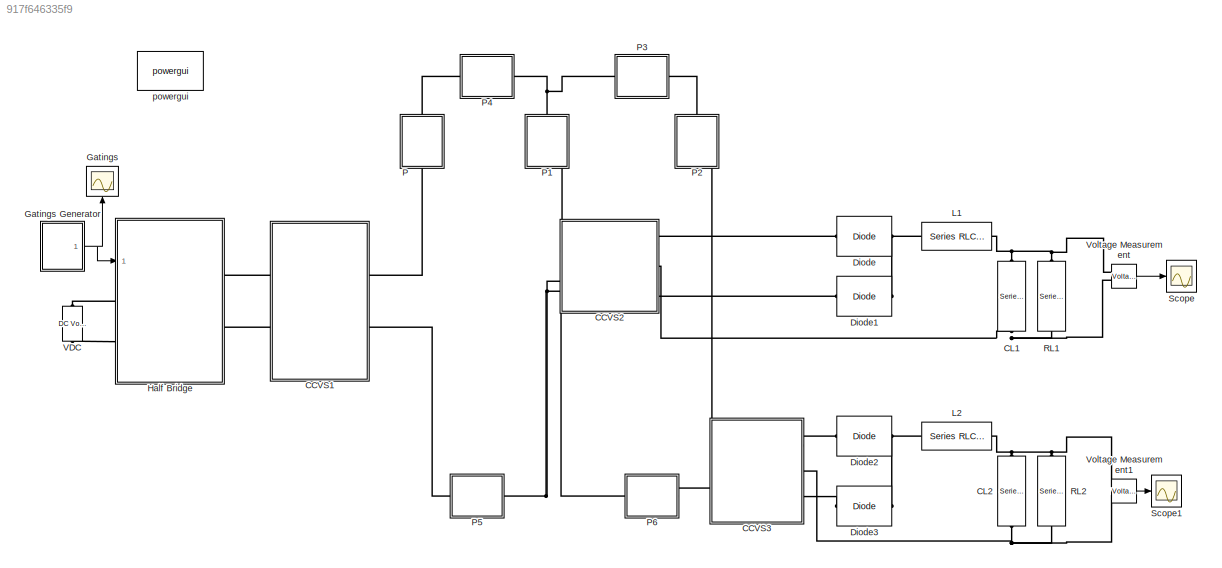
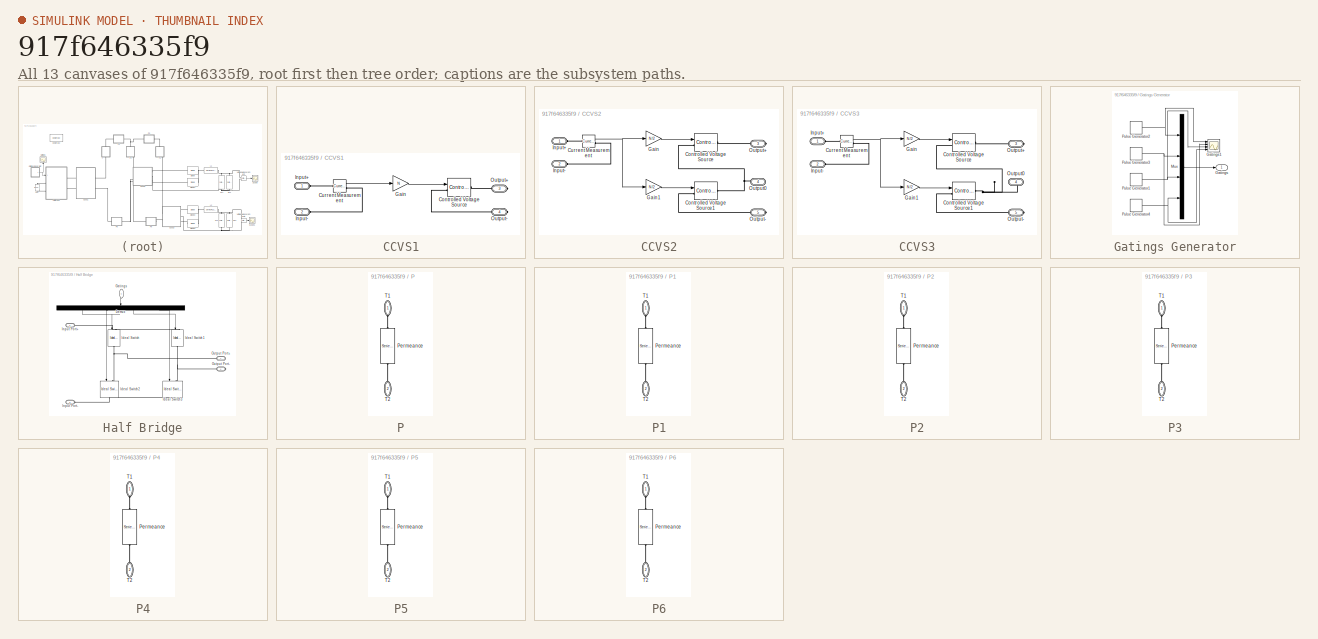
[diagram: thumbnail index - all 13 canvases of the model, root first then tree order]
MODEL slx_917f646335f9
KIND model
BLOCK [SubSystem] CCVS1
  FunctionWithSeparateData = off
  MaskHideContents = off
  MinAlgLoopOccurrences = off
  Opaque = off
  Ports = [0, 0, 0, 0, 0, 2, 2]
  PropExecContextOutsideSubsystem = off
  RTWSystemCode = Auto
  RequestExecContextInheritance = off
BLOCK [Reference] CCVS1/Controlled Voltage Source  REF=powerlib/Electrical
Sources/Controlled Voltage Source
  Amplitude = 0
  Frequency = 0
  Initialize = on
  Measurements = None
  Phase = 0
  Ports = [1, 0, 0, 0, 0, 1, 1]
  SourceBlock = powerlib/Electrical\nSources/Controlled Voltage Source
  SourceType = Controlled Voltage Source
  Source_Type = AC
BLOCK [Reference] CCVS1/Current Measurement  REF=powerlib/Measurements/Current Measurement
  OutputType = Complex
  PSBequivalent = 0
  PhasorSimulation = off
  Ports = [0, 1, 0, 0, 0, 1, 1]
  SourceBlock = powerlib/Measurements/Current Measurement
  SourceType = Current Measurement
BLOCK [Gain] CCVS1/Gain
  Gain = N
  OutDataTypeStr = Inherit: Inherit via internal rule
  ParamDataTypeStr = Inherit: Inherit via internal rule
  SaturateOnIntegerOverflow = off
BLOCK [PMIOPort] CCVS1/Input+
  Port = 1
  Side = Left
BLOCK [PMIOPort] CCVS1/Input-
  Port = 2
  Side = Left
BLOCK [PMIOPort] CCVS1/Output+
  Port = 3
  Side = Right
BLOCK [PMIOPort] CCVS1/Output-
  Port = 4
  Side = Right
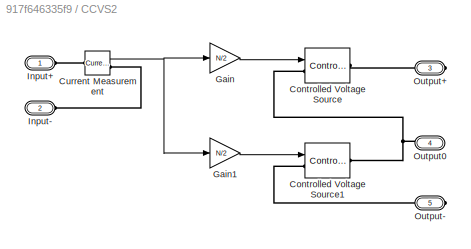
BLOCK [SubSystem] CCVS2
  FunctionWithSeparateData = off
  MaskHideContents = off
  MinAlgLoopOccurrences = off
  Opaque = off
  Ports = [0, 0, 0, 0, 0, 2, 3]
  PropExecContextOutsideSubsystem = off
  RTWSystemCode = Auto
  RequestExecContextInheritance = off
BLOCK [Reference] CCVS2/Controlled Voltage Source  REF=powerlib/Electrical
Sources/Controlled Voltage Source
  Amplitude = 0
  Frequency = 0
  Initialize = on
  Measurements = None
  Phase = 0
  Ports = [1, 0, 0, 0, 0, 1, 1]
  SourceBlock = powerlib/Electrical\nSources/Controlled Voltage Source
  SourceType = Controlled Voltage Source
  Source_Type = AC
BLOCK [Reference] CCVS2/Controlled Voltage Source1  REF=powerlib/Electrical
Sources/Controlled Voltage Source
  Amplitude = 0
  Frequency = 0
  Initialize = on
  Measurements = None
  Phase = 0
  Ports = [1, 0, 0, 0, 0, 1, 1]
  SourceBlock = powerlib/Electrical\nSources/Controlled Voltage Source
  SourceType = Controlled Voltage Source
  Source_Type = AC
BLOCK [Reference] CCVS2/Current Measurement  REF=powerlib/Measurements/Current Measurement
  OutputType = Complex
  PSBequivalent = 0
  PhasorSimulation = off
  Ports = [0, 1, 0, 0, 0, 1, 1]
  SourceBlock = powerlib/Measurements/Current Measurement
  SourceType = Current Measurement
BLOCK [Gain] CCVS2/Gain
  Gain = N/2
  OutDataTypeStr = Inherit: Inherit via internal rule
  ParamDataTypeStr = Inherit: Inherit via internal rule
  SaturateOnIntegerOverflow = off
BLOCK [Gain] CCVS2/Gain1
  Gain = N/2
  OutDataTypeStr = Inherit: Inherit via internal rule
  ParamDataTypeStr = Inherit: Inherit via internal rule
  SaturateOnIntegerOverflow = off
BLOCK [PMIOPort] CCVS2/Input+
  Port = 1
  Side = Left
BLOCK [PMIOPort] CCVS2/Input-
  Port = 2
  Side = Left
BLOCK [PMIOPort] CCVS2/Output+
  Port = 3
  Side = Right
BLOCK [PMIOPort] CCVS2/Output-
  Port = 5
  Side = Right
BLOCK [PMIOPort] CCVS2/Output0
  Port = 4
  Side = Right
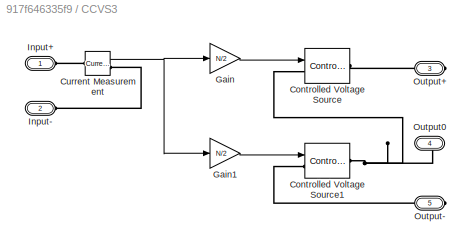
BLOCK [SubSystem] CCVS3
  FunctionWithSeparateData = off
  MaskHideContents = off
  MinAlgLoopOccurrences = off
  Opaque = off
  Ports = [0, 0, 0, 0, 0, 2, 3]
  PropExecContextOutsideSubsystem = off
  RTWSystemCode = Auto
  RequestExecContextInheritance = off
BLOCK [Reference] CCVS3/Controlled Voltage Source  REF=powerlib/Electrical
Sources/Controlled Voltage Source
  Amplitude = 0
  Frequency = 0
  Initialize = on
  Measurements = None
  Phase = 0
  Ports = [1, 0, 0, 0, 0, 1, 1]
  SourceBlock = powerlib/Electrical\nSources/Controlled Voltage Source
  SourceType = Controlled Voltage Source
  Source_Type = AC
BLOCK [Reference] CCVS3/Controlled Voltage Source1  REF=powerlib/Electrical
Sources/Controlled Voltage Source
  Amplitude = 0
  Frequency = 0
  Initialize = on
  Measurements = None
  Phase = 0
  Ports = [1, 0, 0, 0, 0, 1, 1]
  SourceBlock = powerlib/Electrical\nSources/Controlled Voltage Source
  SourceType = Controlled Voltage Source
  Source_Type = AC
BLOCK [Reference] CCVS3/Current Measurement  REF=powerlib/Measurements/Current Measurement
  OutputType = Complex
  PSBequivalent = 0
  PhasorSimulation = off
  Ports = [0, 1, 0, 0, 0, 1, 1]
  SourceBlock = powerlib/Measurements/Current Measurement
  SourceType = Current Measurement
BLOCK [Gain] CCVS3/Gain
  Gain = N/2
  OutDataTypeStr = Inherit: Inherit via internal rule
  ParamDataTypeStr = Inherit: Inherit via internal rule
  SaturateOnIntegerOverflow = off
BLOCK [Gain] CCVS3/Gain1
  Gain = N/2
  OutDataTypeStr = Inherit: Inherit via internal rule
  ParamDataTypeStr = Inherit: Inherit via internal rule
  SaturateOnIntegerOverflow = off
BLOCK [PMIOPort] CCVS3/Input+
  Port = 1
  Side = Left
BLOCK [PMIOPort] CCVS3/Input-
  Port = 2
  Side = Left
BLOCK [PMIOPort] CCVS3/Output+
  Port = 3
  Side = Right
BLOCK [PMIOPort] CCVS3/Output-
  Port = 5
  Side = Right
BLOCK [PMIOPort] CCVS3/Output0
  Port = 4
  Side = Right
BLOCK [Reference] CL1  REF=powerlib/Elements/Series RLC Branch
  BranchType = C
  Capacitance = 1
  Inductance = 1e-3
  InitialCurrent = 0
  InitialVoltage = 0
  LConnTagsString = __new0
  Measurements = None
  Ports = [0, 0, 0, 0, 0, 1, 1]
  RConnTagsString = __new0
  Resistance = 1
  SetiL0 = off
  Setx0 = off
  SourceBlock = powerlib/Elements/Series RLC Branch
  SourceType = Series RLC Branch
BLOCK [Reference] CL2  REF=powerlib/Elements/Series RLC Branch
  BranchType = C
  Capacitance = 1
  Inductance = 1e-3
  InitialCurrent = 0
  InitialVoltage = 0
  LConnTagsString = __new0
  Measurements = None
  Ports = [0, 0, 0, 0, 0, 1, 1]
  RConnTagsString = __new0
  Resistance = 1
  SetiL0 = off
  Setx0 = off
  SourceBlock = powerlib/Elements/Series RLC Branch
  SourceType = Series RLC Branch
BLOCK [Reference] Diode  REF=powerlib/Power
Electronics/Diode
  Cs = 250e-9
  IC = 0
  Lon = 0
  Measurements = off
  Ports = [0, 0, 0, 0, 0, 1, 1]
  Ron = 0.001
  Rs = 500
  SourceBlock = powerlib/Power\nElectronics/Diode
  SourceType = Diode
  UseSnubber = off
  Vf = 0.8
BLOCK [Reference] Diode1  REF=powerlib/Power
Electronics/Diode
  Cs = 250e-9
  IC = 0
  Lon = 0
  Measurements = off
  Ports = [0, 0, 0, 0, 0, 1, 1]
  Ron = 0.001
  Rs = 500
  SourceBlock = powerlib/Power\nElectronics/Diode
  SourceType = Diode
  UseSnubber = off
  Vf = 0.8
BLOCK [Reference] Diode2  REF=powerlib/Power
Electronics/Diode
  Cs = 250e-9
  IC = 0
  Lon = 0
  Measurements = off
  Ports = [0, 0, 0, 0, 0, 1, 1]
  Ron = 0.001
  Rs = 500
  SourceBlock = powerlib/Power\nElectronics/Diode
  SourceType = Diode
  UseSnubber = off
  Vf = 0.8
BLOCK [Reference] Diode3  REF=powerlib/Power
Electronics/Diode
  Cs = 250e-9
  IC = 0
  Lon = 0
  Measurements = off
  Ports = [0, 0, 0, 0, 0, 1, 1]
  Ron = 0.001
  Rs = 500
  SourceBlock = powerlib/Power\nElectronics/Diode
  SourceType = Diode
  UseSnubber = off
  Vf = 0.8
BLOCK [Scope] Gatings
  DataFormat = StructureWithTime
  Floating = off
  NumInputPorts = 1
  Ports = [1]
  SampleTime = 0
  SaveName = ScopeData2
  ShowLegends = off
  YMax = 608000
  YMin = 0
  ZoomMode = xonly
BLOCK [SubSystem] Gatings Generator
  FunctionWithSeparateData = off
  MaskHideContents = off
  MinAlgLoopOccurrences = off
  Opaque = off
  Ports = [0, 1]
  PropExecContextOutsideSubsystem = off
  RTWSystemCode = Auto
  RequestExecContextInheritance = off
BLOCK [Outport] Gatings Generator/Gatings
  IconDisplay = Port number
BLOCK [Scope] Gatings Generator/Gatings1
  DataFormat = StructureWithTime
  Floating = off
  LimitDataPoints = off
  NumInputPorts = 4
  Ports = [4]
  SampleTime = 0
  SaveName = ScopeData3
  ShowLegends = off
  YMax = 2~2~2~2
  YMin = -1~-1~-1~-1
  ZoomMode = xonly
BLOCK [Mux] Gatings Generator/Mux
  DisplayOption = bar
  Ports = [4, 1]
BLOCK [DiscretePulseGenerator] Gatings Generator/Pulse Generator1
  Period = 1/Fs
  PhaseDelay = 1/(2*Fs)
  Ports = [0, 1]
  PulseType = Time based
  PulseWidth = D
BLOCK [DiscretePulseGenerator] Gatings Generator/Pulse Generator2
  Period = 1/Fs
  Ports = [0, 1]
  PulseType = Time based
  PulseWidth = D
BLOCK [DiscretePulseGenerator] Gatings Generator/Pulse Generator3
  Period = 1/Fs
  PhaseDelay = 1/(2*Fs)
  Ports = [0, 1]
  PulseType = Time based
  PulseWidth = D
BLOCK [DiscretePulseGenerator] Gatings Generator/Pulse Generator4
  Period = 1/Fs
  Ports = [0, 1]
  PulseType = Time based
  PulseWidth = D
BLOCK [SubSystem] Half Bridge
  FunctionWithSeparateData = off
  MaskHideContents = off
  MinAlgLoopOccurrences = off
  Opaque = off
  Ports = [1, 0, 0, 0, 0, 2, 2]
  PropExecContextOutsideSubsystem = off
  RTWSystemCode = Auto
  RequestExecContextInheritance = off
BLOCK [Demux] Half Bridge/Demux
  DisplayOption = bar
  Ports = [1, 4]
BLOCK [Inport] Half Bridge/Gatings
  IconDisplay = Port number
BLOCK [Reference] Half Bridge/Ideal Switch  REF=powerlib/Power
Electronics/Ideal Switch
  Cs = inf
  IC = 0
  Lon = 0
  Measurements = off
  Ports = [1, 0, 0, 0, 0, 1, 1]
  Ron = 0.001
  Rs = 1e5
  SourceBlock = powerlib/Power\nElectronics/Ideal Switch
  SourceType = Ideal Switch
BLOCK [Reference] Half Bridge/Ideal Switch1  REF=powerlib/Power
Electronics/Ideal Switch
  Cs = inf
  IC = 0
  Lon = 0
  Measurements = off
  Ports = [1, 0, 0, 0, 0, 1, 1]
  Ron = 0.001
  Rs = 1e5
  SourceBlock = powerlib/Power\nElectronics/Ideal Switch
  SourceType = Ideal Switch
BLOCK [Reference] Half Bridge/Ideal Switch2  REF=powerlib/Power
Electronics/Ideal Switch
  Cs = inf
  IC = 0
  Lon = 0
  Measurements = off
  Ports = [1, 0, 0, 0, 0, 1, 1]
  Ron = 0.001
  Rs = 1e5
  SourceBlock = powerlib/Power\nElectronics/Ideal Switch
  SourceType = Ideal Switch
BLOCK [Reference] Half Bridge/Ideal Switch3  REF=powerlib/Power
Electronics/Ideal Switch
  Cs = inf
  IC = 0
  Lon = 0
  Measurements = off
  Ports = [1, 0, 0, 0, 0, 1, 1]
  Ron = 0.001
  Rs = 1e5
  SourceBlock = powerlib/Power\nElectronics/Ideal Switch
  SourceType = Ideal Switch
BLOCK [PMIOPort] Half Bridge/Input Port+
  Port = 1
  Side = Left
BLOCK [PMIOPort] Half Bridge/Input Port-
  Port = 2
  Side = Left
BLOCK [PMIOPort] Half Bridge/Output Port+
  Port = 3
  Side = Right
BLOCK [PMIOPort] Half Bridge/Output Port-
  Port = 4
  Side = Right
BLOCK [Reference] L1  REF=powerlib/Elements/Series RLC Branch
  BranchType = L
  Capacitance = 1e-6
  Inductance = 1e-5
  InitialCurrent = 0
  InitialVoltage = 0
  LConnTagsString = __new0
  Measurements = None
  Ports = [0, 0, 0, 0, 0, 1, 1]
  RConnTagsString = __new0
  Resistance = 1
  SetiL0 = off
  Setx0 = off
  SourceBlock = powerlib/Elements/Series RLC Branch
  SourceType = Series RLC Branch
BLOCK [Reference] L2  REF=powerlib/Elements/Series RLC Branch
  BranchType = L
  Capacitance = 1e-6
  Inductance = 1e-5
  InitialCurrent = 0
  InitialVoltage = 0
  LConnTagsString = __new0
  Measurements = None
  Ports = [0, 0, 0, 0, 0, 1, 1]
  RConnTagsString = __new0
  Resistance = 1
  SetiL0 = off
  Setx0 = off
  SourceBlock = powerlib/Elements/Series RLC Branch
  SourceType = Series RLC Branch
BLOCK [SubSystem] P
  FunctionWithSeparateData = off
  MaskHideContents = off
  MinAlgLoopOccurrences = off
  Opaque = off
  Ports = [0, 0, 0, 0, 0, 1, 1]
  PropExecContextOutsideSubsystem = off
  RTWSystemCode = Auto
  RequestExecContextInheritance = off
BLOCK [Reference] P/Permeance  REF=powerlib/Elements/Series RLC Branch
  BranchType = L
  Capacitance = 1e-6
  Inductance = 1e-3
  InitialCurrent = 0
  InitialVoltage = 0
  LConnTagsString = __new0
  Measurements = None
  Ports = [0, 0, 0, 0, 0, 1, 1]
  RConnTagsString = __new0
  Resistance = 1
  SetiL0 = off
  Setx0 = off
  SourceBlock = powerlib/Elements/Series RLC Branch
  SourceType = Series RLC Branch
BLOCK [PMIOPort] P/T1
  Port = 1
  Side = Left
BLOCK [PMIOPort] P/T2
  Port = 2
  Side = Right
BLOCK [SubSystem] P1
  FunctionWithSeparateData = off
  MaskHideContents = off
  MinAlgLoopOccurrences = off
  Opaque = off
  Ports = [0, 0, 0, 0, 0, 1, 1]
  PropExecContextOutsideSubsystem = off
  RTWSystemCode = Auto
  RequestExecContextInheritance = off
BLOCK [Reference] P1/Permeance  REF=powerlib/Elements/Series RLC Branch
  BranchType = L
  Capacitance = 1e-6
  Inductance = 1e-3
  InitialCurrent = 0
  InitialVoltage = 0
  LConnTagsString = __new0
  Measurements = None
  Ports = [0, 0, 0, 0, 0, 1, 1]
  RConnTagsString = __new0
  Resistance = 1
  SetiL0 = off
  Setx0 = off
  SourceBlock = powerlib/Elements/Series RLC Branch
  SourceType = Series RLC Branch
BLOCK [PMIOPort] P1/T1
  Port = 1
  Side = Left
BLOCK [PMIOPort] P1/T2
  Port = 2
  Side = Right
BLOCK [SubSystem] P2
  FunctionWithSeparateData = off
  MaskHideContents = off
  MinAlgLoopOccurrences = off
  Opaque = off
  Ports = [0, 0, 0, 0, 0, 1, 1]
  PropExecContextOutsideSubsystem = off
  RTWSystemCode = Auto
  RequestExecContextInheritance = off
BLOCK [Reference] P2/Permeance  REF=powerlib/Elements/Series RLC Branch
  BranchType = L
  Capacitance = 1e-6
  Inductance = 1e-3
  InitialCurrent = 0
  InitialVoltage = 0
  LConnTagsString = __new0
  Measurements = None
  Ports = [0, 0, 0, 0, 0, 1, 1]
  RConnTagsString = __new0
  Resistance = 1
  SetiL0 = off
  Setx0 = off
  SourceBlock = powerlib/Elements/Series RLC Branch
  SourceType = Series RLC Branch
BLOCK [PMIOPort] P2/T1
  Port = 1
  Side = Left
BLOCK [PMIOPort] P2/T2
  Port = 2
  Side = Right
BLOCK [SubSystem] P3
  FunctionWithSeparateData = off
  MaskHideContents = off
  MinAlgLoopOccurrences = off
  Opaque = off
  Ports = [0, 0, 0, 0, 0, 1, 1]
  PropExecContextOutsideSubsystem = off
  RTWSystemCode = Auto
  RequestExecContextInheritance = off
BLOCK [Reference] P3/Permeance  REF=powerlib/Elements/Series RLC Branch
  BranchType = L
  Capacitance = 1e-6
  Inductance = 1e-3
  InitialCurrent = 0
  InitialVoltage = 0
  LConnTagsString = __new0
  Measurements = None
  Ports = [0, 0, 0, 0, 0, 1, 1]
  RConnTagsString = __new0
  Resistance = 1
  SetiL0 = off
  Setx0 = off
  SourceBlock = powerlib/Elements/Series RLC Branch
  SourceType = Series RLC Branch
BLOCK [PMIOPort] P3/T1
  Port = 1
  Side = Left
BLOCK [PMIOPort] P3/T2
  Port = 2
  Side = Right
BLOCK [SubSystem] P4
  FunctionWithSeparateData = off
  MaskHideContents = off
  MinAlgLoopOccurrences = off
  Opaque = off
  Ports = [0, 0, 0, 0, 0, 1, 1]
  PropExecContextOutsideSubsystem = off
  RTWSystemCode = Auto
  RequestExecContextInheritance = off
BLOCK [Reference] P4/Permeance  REF=powerlib/Elements/Series RLC Branch
  BranchType = L
  Capacitance = 1e-6
  Inductance = 1e-3
  InitialCurrent = 0
  InitialVoltage = 0
  LConnTagsString = __new0
  Measurements = None
  Ports = [0, 0, 0, 0, 0, 1, 1]
  RConnTagsString = __new0
  Resistance = 1
  SetiL0 = off
  Setx0 = off
  SourceBlock = powerlib/Elements/Series RLC Branch
  SourceType = Series RLC Branch
BLOCK [PMIOPort] P4/T1
  Port = 1
  Side = Left
BLOCK [PMIOPort] P4/T2
  Port = 2
  Side = Right
BLOCK [SubSystem] P5
  FunctionWithSeparateData = off
  MaskHideContents = off
  MinAlgLoopOccurrences = off
  Opaque = off
  Ports = [0, 0, 0, 0, 0, 1, 1]
  PropExecContextOutsideSubsystem = off
  RTWSystemCode = Auto
  RequestExecContextInheritance = off
BLOCK [Reference] P5/Permeance  REF=powerlib/Elements/Series RLC Branch
  BranchType = L
  Capacitance = 1e-6
  Inductance = 1e-3
  InitialCurrent = 0
  InitialVoltage = 0
  LConnTagsString = __new0
  Measurements = None
  Ports = [0, 0, 0, 0, 0, 1, 1]
  RConnTagsString = __new0
  Resistance = 1
  SetiL0 = off
  Setx0 = off
  SourceBlock = powerlib/Elements/Series RLC Branch
  SourceType = Series RLC Branch
BLOCK [PMIOPort] P5/T1
  Port = 1
  Side = Left
BLOCK [PMIOPort] P5/T2
  Port = 2
  Side = Right
BLOCK [SubSystem] P6
  FunctionWithSeparateData = off
  MaskHideContents = off
  MinAlgLoopOccurrences = off
  Opaque = off
  Ports = [0, 0, 0, 0, 0, 1, 1]
  PropExecContextOutsideSubsystem = off
  RTWSystemCode = Auto
  RequestExecContextInheritance = off
BLOCK [Reference] P6/Permeance  REF=powerlib/Elements/Series RLC Branch
  BranchType = L
  Capacitance = 1e-6
  Inductance = 1e-3
  InitialCurrent = 0
  InitialVoltage = 0
  LConnTagsString = __new0
  Measurements = None
  Ports = [0, 0, 0, 0, 0, 1, 1]
  RConnTagsString = __new0
  Resistance = 1
  SetiL0 = off
  Setx0 = off
  SourceBlock = powerlib/Elements/Series RLC Branch
  SourceType = Series RLC Branch
BLOCK [PMIOPort] P6/T1
  Port = 1
  Side = Left
BLOCK [PMIOPort] P6/T2
  Port = 2
  Side = Right
BLOCK [Reference] RL1  REF=powerlib/Elements/Series RLC Branch
  BranchType = R
  Capacitance = 1e-6
  Inductance = 1e-3
  InitialCurrent = 0
  InitialVoltage = 0
  LConnTagsString = __new0
  Measurements = None
  Ports = [0, 0, 0, 0, 0, 1, 1]
  RConnTagsString = __new0
  Resistance = 1/20
  SetiL0 = off
  Setx0 = off
  SourceBlock = powerlib/Elements/Series RLC Branch
  SourceType = Series RLC Branch
BLOCK [Reference] RL2  REF=powerlib/Elements/Series RLC Branch
  BranchType = R
  Capacitance = 1e-6
  Inductance = 1e-3
  InitialCurrent = 0
  InitialVoltage = 0
  LConnTagsString = __new0
  Measurements = None
  Ports = [0, 0, 0, 0, 0, 1, 1]
  RConnTagsString = __new0
  Resistance = 1
  SetiL0 = off
  Setx0 = off
  SourceBlock = powerlib/Elements/Series RLC Branch
  SourceType = Series RLC Branch
BLOCK [Scope] Scope
  DataFormat = StructureWithTime
  Floating = off
  NumInputPorts = 1
  Ports = [1]
  SampleTime = 0
  ShowLegends = off
  YMax = 431700
  YMin = 430900
  ZoomMode = xonly
BLOCK [Scope] Scope1
  DataFormat = StructureWithTime
  Floating = off
  NumInputPorts = 1
  Ports = [1]
  SampleTime = 0
  SaveName = ScopeData1
  ShowLegends = off
  YMax = 90000
  YMin = 0
BLOCK [Reference] VDC  REF=powerlib/Electrical
Sources/DC Voltage Source
  Amplitude = 160
  Measurements = None
  Ports = [0, 0, 0, 0, 0, 1, 1]
  SourceBlock = powerlib/Electrical\nSources/DC Voltage Source
  SourceType = DC Voltage Source
BLOCK [Reference] Voltage Measurement  REF=powerlib/Measurements/Voltage Measurement
  OutputType = Complex
  PSBequivalent = 0
  PhasorSimulation = off
  Ports = [0, 1, 0, 0, 0, 2]
  SourceBlock = powerlib/Measurements/Voltage Measurement
  SourceType = Voltage Measurement
BLOCK [Reference] Voltage Measurement1  REF=powerlib/Measurements/Voltage Measurement
  OutputType = Complex
  PSBequivalent = 0
  PhasorSimulation = off
  Ports = [0, 1, 0, 0, 0, 2]
  SourceBlock = powerlib/Measurements/Voltage Measurement
  SourceType = Voltage Measurement
BLOCK [Reference] powergui  REF=powerlib/powergui
  DisableRonSwitches = off
  DisableSnubberDevices = off
  DisableVfSwitches = off
  DisplayEquations = off
  DisplayStyle = 1
  EnableUseOfTLC = off
  ErrMax = 1e-4
  Frange = [0:2:500]
  FreqAxis = off
  FunctionMessages = off
  HookPort = off
  Interpol = off
  Iterations = 50
  MaxFrequency = 1000
  Pbase = 100e6
  Ports = []
  Priority = 1
  ResistiveCurrentMeasurement = off
  RestoreLinks = warning
  RmsSteady = 1
  SPID = off
  SampleTime = 1e-5
  ShowGrid = off
  SolverType = Backward Euler
  SourceBlock = powerlib/powergui
  SourceType = PSB option menu block
  StartTime = 0.0
  SwTol = 0
  Ts = 0
  UnitsV = kV
  UnitsW = MW
  UserDataPersistent = on
  Xlog = on
  Ylog = off
  ZoomFFT = off
  cycles = 1
  display = off
  echomessages = off
  frequency = 60
  frequencyindice = 0
  frequencyindicesteady = 1
  fundamental = 60
  methode = off
  save = off
  variable = ZData
  x0status = blocks
LINE CCVS1/Current Measurement:1 -> CCVS1/Gain:1
LINE CCVS1/Gain:1 -> CCVS1/Controlled Voltage Source:1
NET CCVS2/Current Measurement:1 -> CCVS2/Gain1:1, CCVS2/Gain:1
LINE CCVS2/Gain1:1 -> CCVS2/Controlled Voltage Source1:1
LINE CCVS2/Gain:1 -> CCVS2/Controlled Voltage Source:1
NET CCVS3/Current Measurement:1 -> CCVS3/Gain1:1, CCVS3/Gain:1
LINE CCVS3/Gain1:1 -> CCVS3/Controlled Voltage Source1:1
LINE CCVS3/Gain:1 -> CCVS3/Controlled Voltage Source:1
LINE Gatings Generator/Mux:1 -> Gatings Generator/Gatings:1
NET Gatings Generator/Pulse Generator1:1 -> Gatings Generator/Gatings1:3, Gatings Generator/Mux:3
NET Gatings Generator/Pulse Generator2:1 -> Gatings Generator/Gatings1:1, Gatings Generator/Mux:1
NET Gatings Generator/Pulse Generator3:1 -> Gatings Generator/Gatings1:2, Gatings Generator/Mux:2
NET Gatings Generator/Pulse Generator4:1 -> Gatings Generator/Gatings1:4, Gatings Generator/Mux:4
NET Gatings Generator:1 -> Gatings:1, Half Bridge:1
LINE Half Bridge/Demux:1 -> Half Bridge/Ideal Switch:1
LINE Half Bridge/Demux:2 -> Half Bridge/Ideal Switch2:1
LINE Half Bridge/Demux:3 -> Half Bridge/Ideal Switch1:1
LINE Half Bridge/Demux:4 -> Half Bridge/Ideal Switch3:1
LINE Half Bridge/Gatings:1 -> Half Bridge/Demux:1
LINE Voltage Measurement1:1 -> Scope1:1
LINE Voltage Measurement:1 -> Scope:1
PLINE CCVS1/Controlled Voltage Source:LConn1 -- CCVS1/Output-:RConn1
PLINE CCVS1/Controlled Voltage Source:RConn1 -- CCVS1/Output+:RConn1
PLINE CCVS1/Current Measurement:LConn1 -- CCVS1/Input+:RConn1
PLINE CCVS1/Current Measurement:RConn1 -- CCVS1/Input-:RConn1
PLINE CCVS1:LConn1 -- Half Bridge:RConn1
PLINE CCVS1:LConn2 -- Half Bridge:RConn2
PLINE CCVS1:RConn1 -- P:RConn1
PLINE CCVS1:RConn2 -- P5:LConn1
PLINE CCVS2/Controlled Voltage Source1:LConn1 -- CCVS2/Output-:RConn1
PNET net1: CCVS2/Controlled Voltage Source1:RConn1 -- CCVS2/Controlled Voltage Source:LConn1 -- CCVS2/Output0:RConn1
PLINE CCVS2/Controlled Voltage Source:RConn1 -- CCVS2/Output+:RConn1
PLINE CCVS2/Current Measurement:LConn1 -- CCVS2/Input+:RConn1
PLINE CCVS2/Current Measurement:RConn1 -- CCVS2/Input-:RConn1
PLINE CCVS2:LConn1 -- P1:RConn1
PNET net2: CCVS2:LConn2 -- P5:RConn1 -- P6:LConn1
PLINE CCVS2:RConn1 -- Diode:LConn1
PNET net3: CCVS2:RConn2 -- CL1:LConn1 -- RL1:LConn1 -- Voltage Measurement:LConn2
PLINE CCVS2:RConn3 -- Diode1:LConn1
PLINE CCVS3/Controlled Voltage Source1:LConn1 -- CCVS3/Output-:RConn1
PNET net4: CCVS3/Controlled Voltage Source1:RConn1 -- CCVS3/Controlled Voltage Source:LConn1 -- CCVS3/Output0:RConn1
PLINE CCVS3/Controlled Voltage Source:RConn1 -- CCVS3/Output+:RConn1
PLINE CCVS3/Current Measurement:LConn1 -- CCVS3/Input+:RConn1
PLINE CCVS3/Current Measurement:RConn1 -- CCVS3/Input-:RConn1
PLINE CCVS3:LConn1 -- P2:RConn1
PLINE CCVS3:LConn2 -- P6:RConn1
PLINE CCVS3:RConn1 -- Diode2:LConn1
PNET net5: CCVS3:RConn2 -- CL2:LConn1 -- RL2:LConn1 -- Voltage Measurement1:LConn2
PLINE CCVS3:RConn3 -- Diode3:LConn1
PNET net6: CL1:RConn1 -- L1:LConn1 -- RL1:RConn1 -- Voltage Measurement:LConn1
PNET net7: CL2:RConn1 -- L2:LConn1 -- RL2:RConn1 -- Voltage Measurement1:LConn1
PNET net8: Diode1:RConn1 -- Diode:RConn1 -- L1:RConn1
PNET net9: Diode2:RConn1 -- Diode3:RConn1 -- L2:RConn1
PNET net10: Half Bridge/Ideal Switch1:LConn1 -- Half Bridge/Ideal Switch:LConn1 -- Half Bridge/Input Port+:RConn1
PNET net11: Half Bridge/Ideal Switch1:RConn1 -- Half Bridge/Ideal Switch3:LConn1 -- Half Bridge/Output Port-:RConn1
PNET net12: Half Bridge/Ideal Switch2:LConn1 -- Half Bridge/Ideal Switch:RConn1 -- Half Bridge/Output Port+:RConn1
PNET net13: Half Bridge/Ideal Switch2:RConn1 -- Half Bridge/Ideal Switch3:RConn1 -- Half Bridge/Input Port-:RConn1
PLINE Half Bridge:LConn1 -- VDC:RConn1
PLINE Half Bridge:LConn2 -- VDC:LConn1
PLINE P/Permeance:LConn1 -- P/T1:RConn1
PLINE P/Permeance:RConn1 -- P/T2:RConn1
PLINE P1/Permeance:LConn1 -- P1/T1:RConn1
PLINE P1/Permeance:RConn1 -- P1/T2:RConn1
PNET net14: P1:LConn1 -- P3:RConn1 -- P4:RConn1
PLINE P2/Permeance:LConn1 -- P2/T1:RConn1
PLINE P2/Permeance:RConn1 -- P2/T2:RConn1
PLINE P2:LConn1 -- P3:LConn1
PLINE P3/Permeance:LConn1 -- P3/T1:RConn1
PLINE P3/Permeance:RConn1 -- P3/T2:RConn1
PLINE P4/Permeance:LConn1 -- P4/T1:RConn1
PLINE P4/Permeance:RConn1 -- P4/T2:RConn1
PLINE P4:LConn1 -- P:LConn1
PLINE P5/Permeance:LConn1 -- P5/T1:RConn1
PLINE P5/Permeance:RConn1 -- P5/T2:RConn1
PLINE P6/Permeance:LConn1 -- P6/T1:RConn1
PLINE P6/Permeance:RConn1 -- P6/T2:RConn1
note: NET lines group one-source signal fan-out (src -> all destinations, sorted); 1:1 wires keep LINE; PNET lines group multi-terminal physical nets as a canonical sorted terminal list (undirected conserving connections); 2-terminal nets keep the pairwise PLINE form
